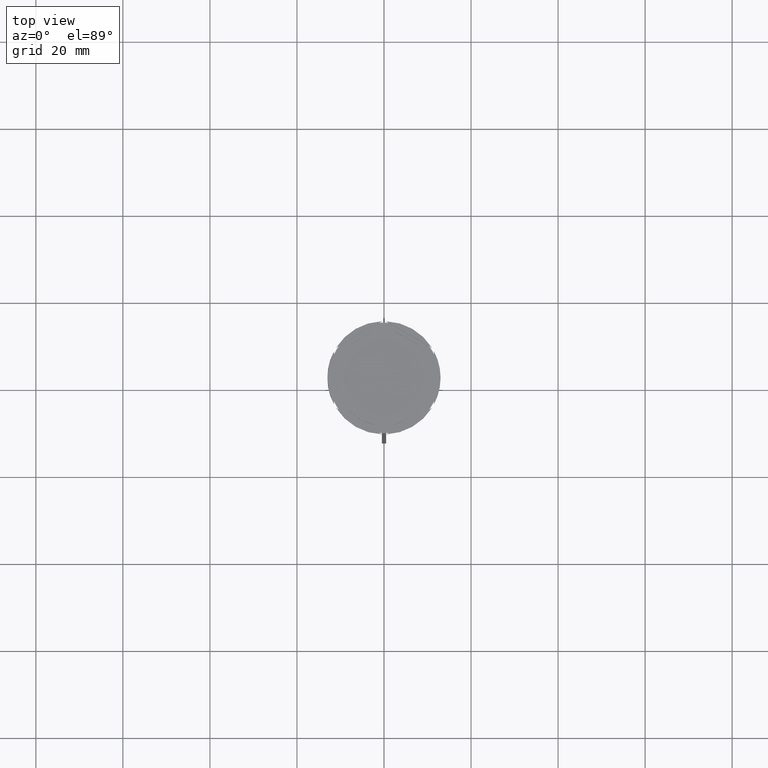
[diagram: clean part render]
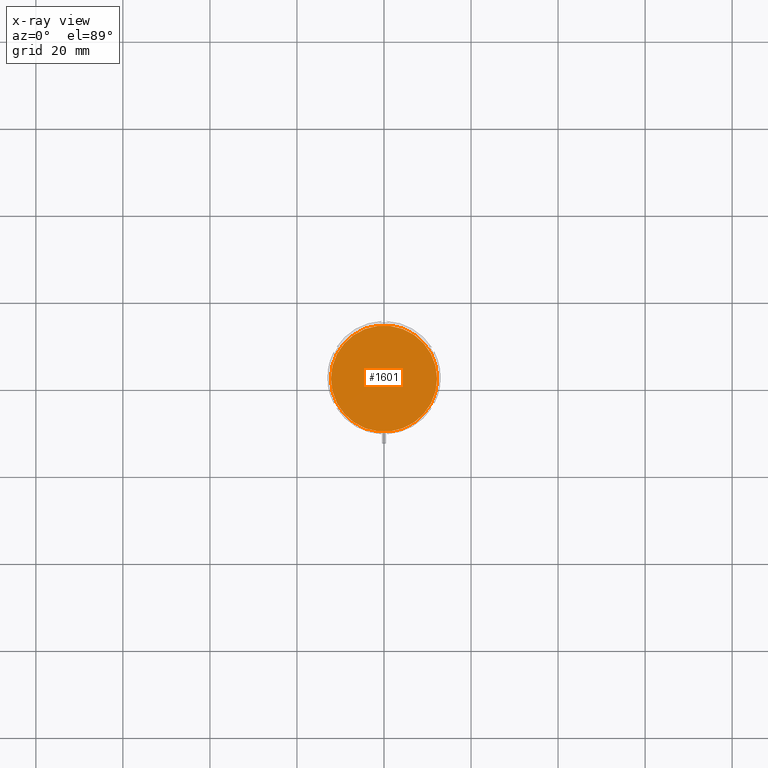
[diagram: x-ray — body ghosted, one internal face saturated and labeled with its STEP entity id]
A machine part, top view, then the same camera in x-ray: the body is ghosted and one INTERNAL B-rep face — a face not visible from any outside direction — is saturated and labeled: STEP entity #1601.
In plain terms, the highlighted planar face has unit normal (0, 0, -1).
Its self-contained STEP definition (entity closure, byte-faithful):
#151 = DIRECTION ( 'NONE',  ( -1.000000000000000000, 0.000000000000000000, 0.000000000000000000 ) ) ;
#362 = DIRECTION ( 'NONE',  ( -0.000000000000000000, -0.000000000000000000, 1.000000000000000000 ) ) ;
#494 = AXIS2_PLACEMENT_3D ( 'NONE', #2141, #827, #2360 ) ;
#516 = DIRECTION ( 'NONE',  ( -0.000000000000000000, -0.000000000000000000, 1.000000000000000000 ) ) ;
#647 = FACE_OUTER_BOUND ( 'NONE', #1081, .T. ) ;
#827 = DIRECTION ( 'NONE',  ( 0.000000000000000000, 0.000000000000000000, -1.000000000000000000 ) ) ;
#830 = ORIENTED_EDGE ( 'NONE', *, *, #1451, .T. ) ;
#1008 = ORIENTED_EDGE ( 'NONE', *, *, #2595, .T. ) ;
#1081 = EDGE_LOOP ( 'NONE', ( #830, #1008 ) ) ;
#1232 = CARTESIAN_POINT ( 'NONE',  ( 12.20000000000000639, 1.512438796946981880E-15, -12.00000000000000000 ) ) ;
#1248 = AXIS2_PLACEMENT_3D ( 'NONE', #1665, #362, #2092 ) ;
#1451 = EDGE_CURVE ( 'NONE', #1489, #1571, #2251, .T. ) ;
#1489 = VERTEX_POINT ( 'NONE', #2063 ) ;
#1571 = VERTEX_POINT ( 'NONE', #1232 ) ;
#1601 = ADVANCED_FACE ( 'NONE', ( #647 ), #2159, .F. ) ;
#1665 = CARTESIAN_POINT ( 'NONE',  ( 0.000000000000000000, 0.000000000000000000, -12.00000000000000000 ) ) ;
#1919 = CIRCLE ( 'NONE', #2737, 12.20000000000000639 ) ;
#2063 = CARTESIAN_POINT ( 'NONE',  ( -12.20000000000000639, 0.000000000000000000, -12.00000000000000000 ) ) ;
#2067 = CARTESIAN_POINT ( 'NONE',  ( 0.000000000000000000, 0.000000000000000000, -12.00000000000000000 ) ) ;
#2092 = DIRECTION ( 'NONE',  ( -1.000000000000000000, 0.000000000000000000, 0.000000000000000000 ) ) ;
#2141 = CARTESIAN_POINT ( 'NONE',  ( 0.000000000000000000, 0.000000000000000000, -12.00000000000000000 ) ) ;
#2159 = PLANE ( 'NONE',  #494 ) ;
#2251 = CIRCLE ( 'NONE', #1248, 12.20000000000000639 ) ;
#2360 = DIRECTION ( 'NONE',  ( -1.000000000000000000, 0.000000000000000000, -0.000000000000000000 ) ) ;
#2595 = EDGE_CURVE ( 'NONE', #1571, #1489, #1919, .T. ) ;
#2737 = AXIS2_PLACEMENT_3D ( 'NONE', #2067, #516, #151 ) ;